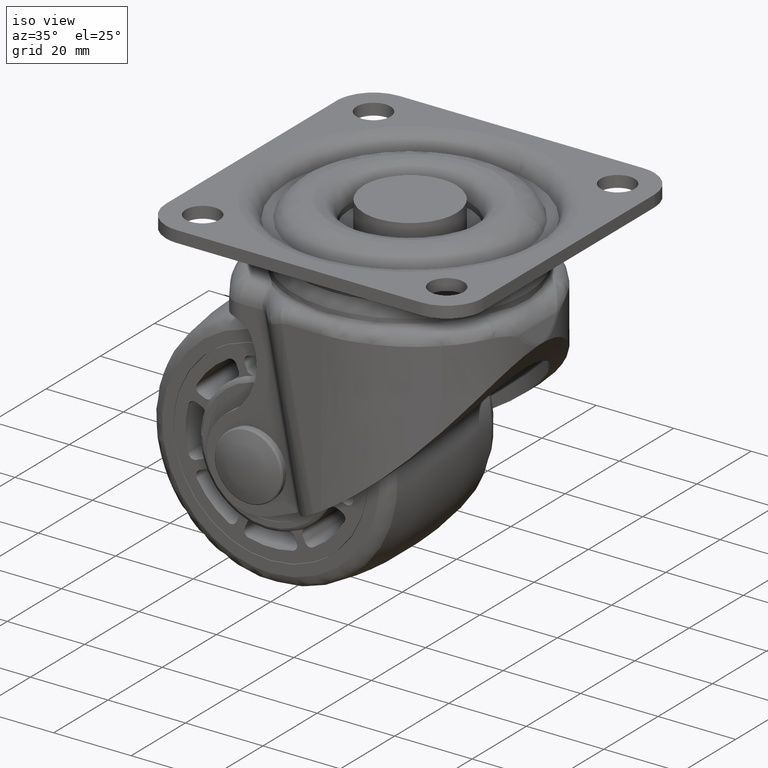
[diagram: clean part render]
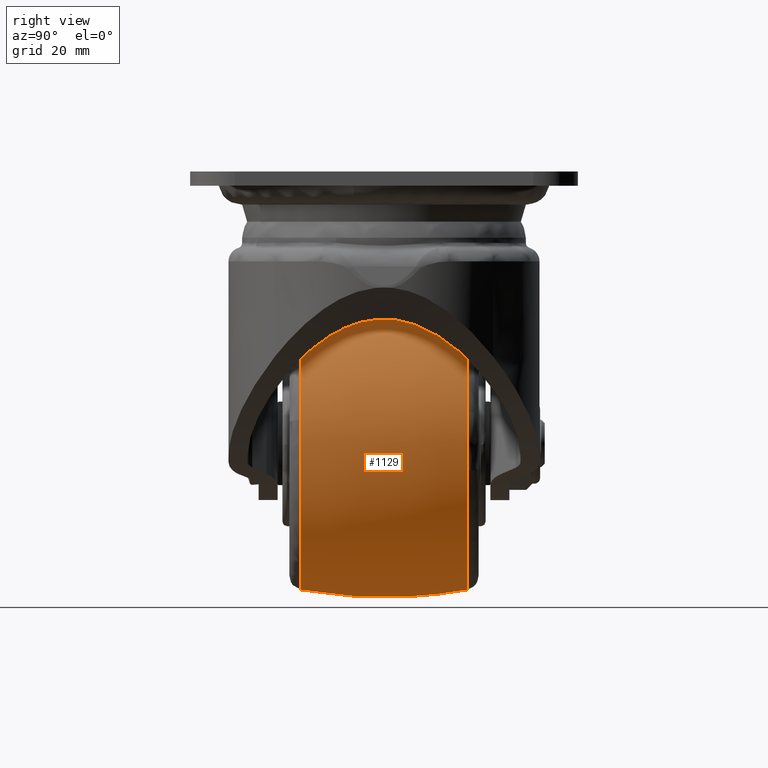
[diagram: tour spotlight — one face highlighted and labeled with its STEP entity id]
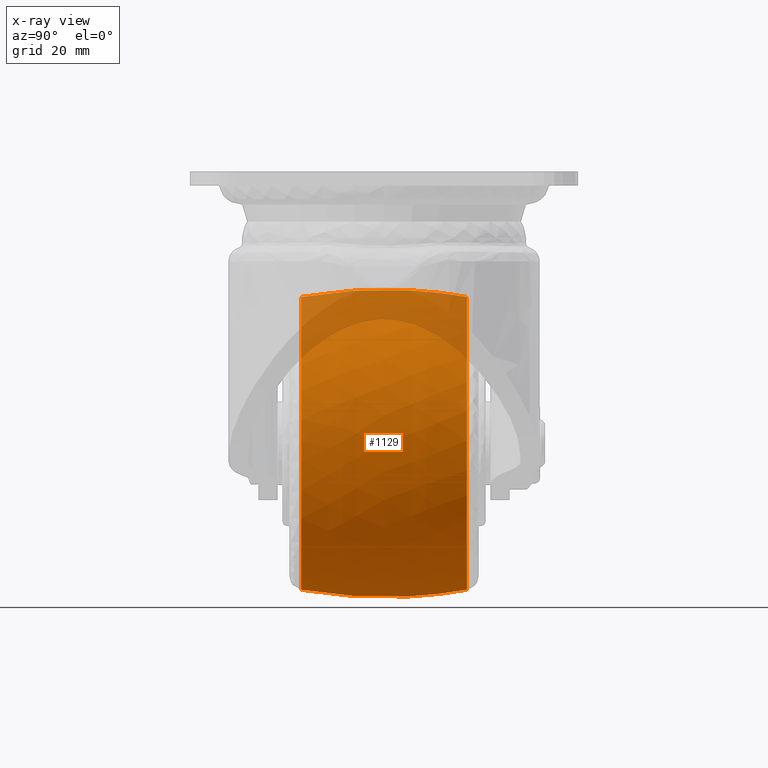
[diagram: x-ray of the same camera — body ghosted, this tour face saturated]
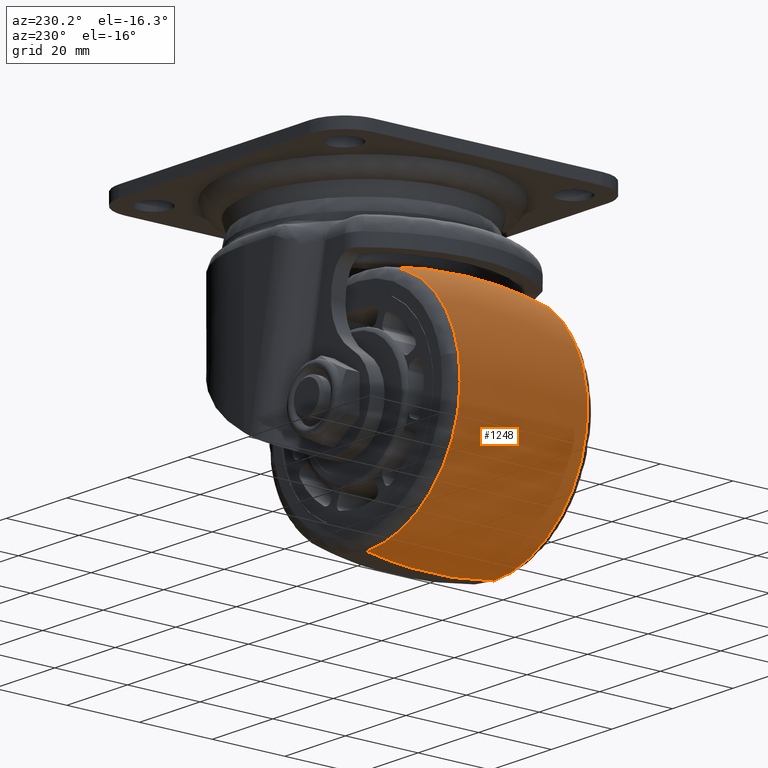
[diagram: tour spotlight — one face highlighted and labeled with its STEP entity id]
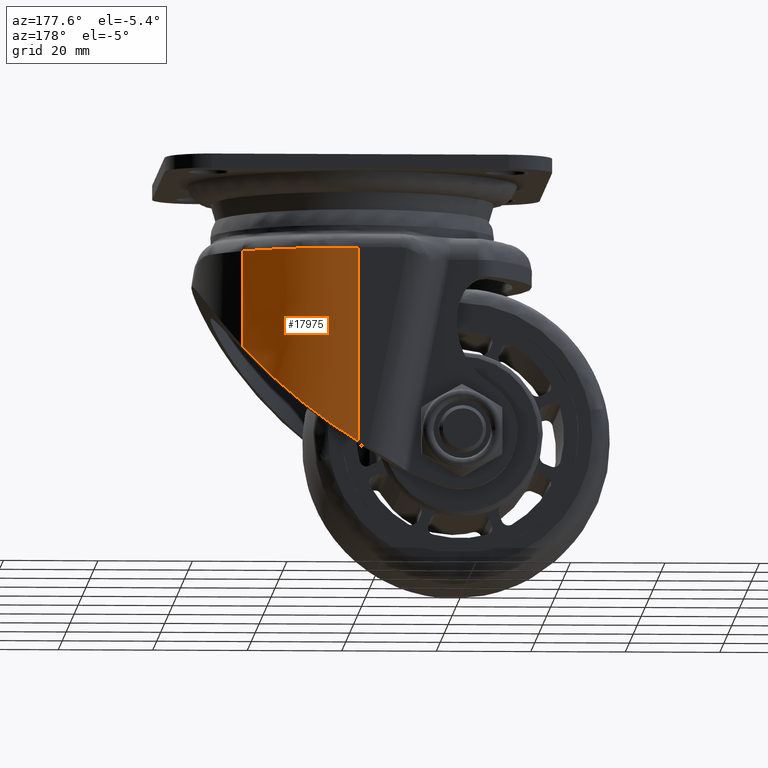
[diagram: tour spotlight — one face highlighted and labeled with its STEP entity id]
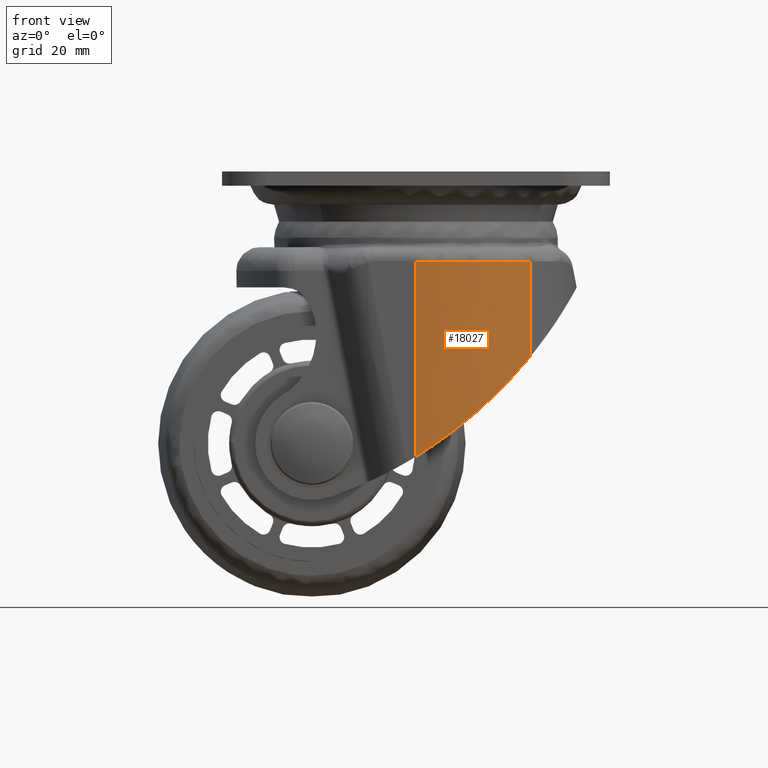
[diagram: tour spotlight — one face highlighted and labeled with its STEP entity id]
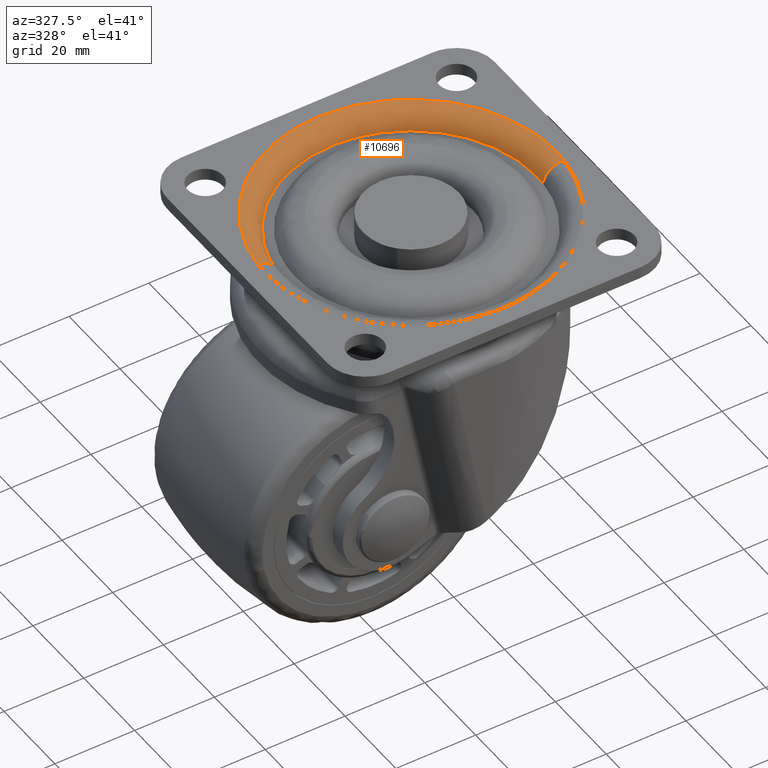
[diagram: tour spotlight — one face highlighted and labeled with its STEP entity id]
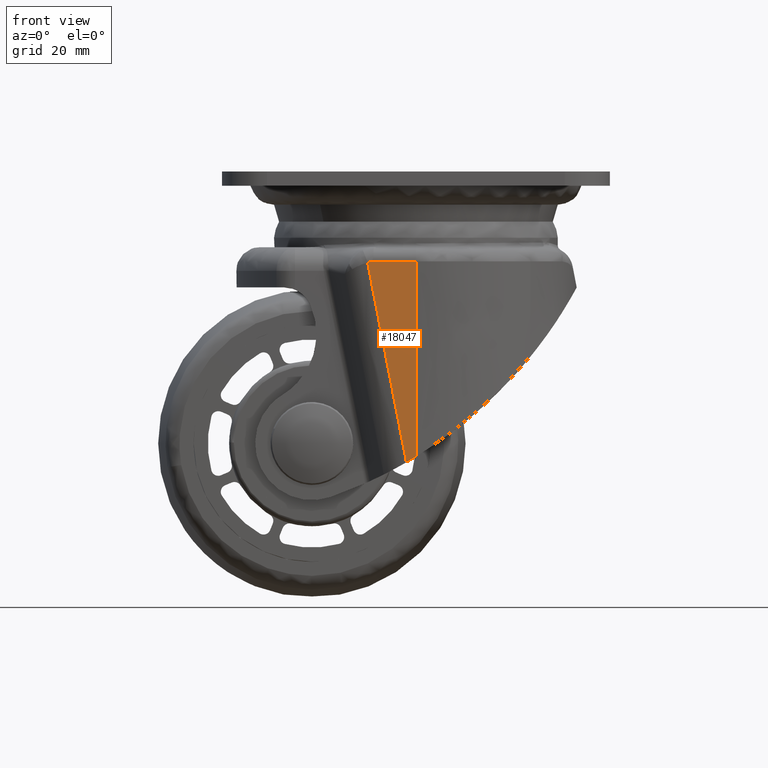
[diagram: tour spotlight — one face highlighted and labeled with its STEP entity id]
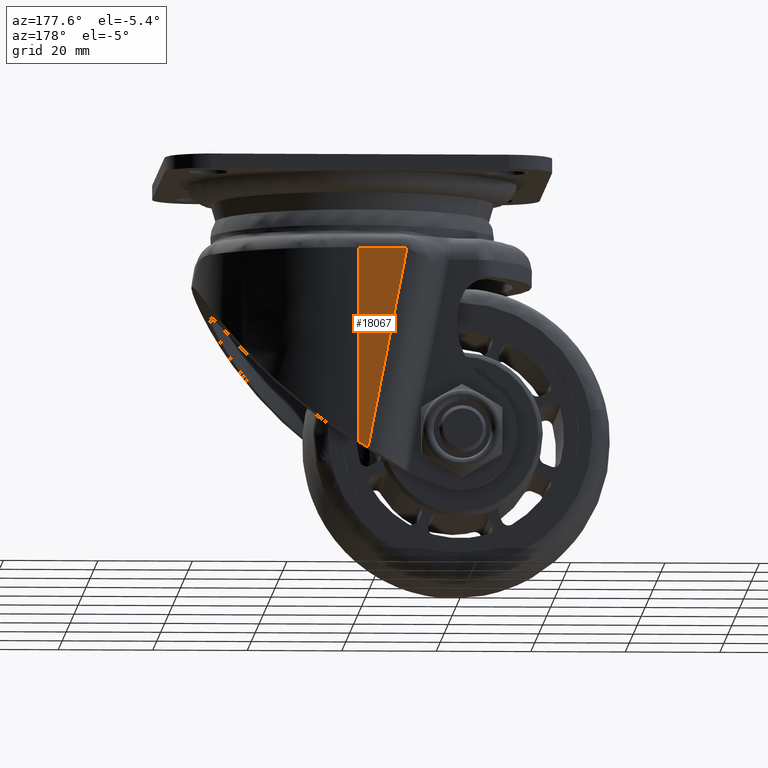
[diagram: tour spotlight — one face highlighted and labeled with its STEP entity id]
A machine part: a face-by-face anatomy tour. The part has 332 B-rep faces; the first image is the clean iso view, then the 7 largest visible faces are spotlighted one at a time (largest first), each with its STEP entity span.

Face 1 — right view, entity #1129. An x-ray twin of the same camera follows (body ghosted, this face saturated) — the face is partly hidden behind the body. In plain terms, the highlighted face is a freeform B-spline surface patch.
Definition (entity closure, byte-faithful):
#985=CARTESIAN_POINT('',(-0.856139173198748,-19.280469753875106,-30.623715207231665));
#986=CARTESIAN_POINT('',(-0.908593974985395,-9.731530490283955,-32.500000000000000));
#987=CARTESIAN_POINT('',(-0.908593974985395,0.0,-32.500000000000007));
#988=CARTESIAN_POINT('',(-0.908593974985395,9.731530490283953,-32.500000000000000));
#989=CARTESIAN_POINT('',(-0.856139173198748,19.280469753875099,-30.623715207231665));
#990=CARTESIAN_POINT('',(-0.430562556700532,-19.280469753875106,-30.623715207231669));
#991=CARTESIAN_POINT('',(-0.456942699410385,-9.731530490283957,-32.500000000000000));
#992=CARTESIAN_POINT('',(-0.456942699410385,0.0,-32.500000000000000));
#993=CARTESIAN_POINT('',(-0.456942699410385,9.731530490283955,-32.500000000000000));
#994=CARTESIAN_POINT('',(-0.430562556700532,19.280469753875096,-30.623715207231669));
#995=CARTESIAN_POINT('',(30.623715207231665,-19.280469753875089,-30.623715207231665));
#996=CARTESIAN_POINT('',(32.499999999999993,-9.731530490283953,-32.499999999999993));
#997=CARTESIAN_POINT('',(32.500000000000007,0.0,-32.500000000000007));
#998=CARTESIAN_POINT('',(32.499999999999993,9.731530490283952,-32.499999999999993));
#999=CARTESIAN_POINT('',(30.623715207231665,19.280469753875089,-30.623715207231665));
#1000=CARTESIAN_POINT('',(30.623715207231662,-19.280469753875103,0.0));
#1001=CARTESIAN_POINT('',(32.499999999999993,-9.731530490283957,0.0));
#1002=CARTESIAN_POINT('',(32.500000000000000,0.0,0.0));
#1003=CARTESIAN_POINT('',(32.499999999999993,9.731530490283955,0.0));
#1004=CARTESIAN_POINT('',(30.623715207231673,19.280469753875103,0.0));
#1005=CARTESIAN_POINT('',(30.623715207231665,-19.280469753875089,30.623715207231665));
#1006=CARTESIAN_POINT('',(32.499999999999993,-9.731530490283953,32.499999999999993));
#1007=CARTESIAN_POINT('',(32.500000000000007,0.0,32.500000000000007));
#1008=CARTESIAN_POINT('',(32.499999999999993,9.731530490283952,32.499999999999993));
#1009=CARTESIAN_POINT('',(30.623715207231665,19.280469753875089,30.623715207231665));
#1010=CARTESIAN_POINT('',(-0.430562556700530,-19.280469753875106,30.623715207231669));
#1011=CARTESIAN_POINT('',(-0.456942699410383,-9.731530490283957,32.500000000000000));
#1012=CARTESIAN_POINT('',(-0.456942699410383,0.0,32.500000000000000));
#1013=CARTESIAN_POINT('',(-0.456942699410383,9.731530490283955,32.500000000000000));
#1014=CARTESIAN_POINT('',(-0.430562556700530,19.280469753875096,30.623715207231669));
#1015=CARTESIAN_POINT('',(-0.856139173198744,-19.280469753875106,30.623715207231665));
#1016=CARTESIAN_POINT('',(-0.908593974985391,-9.731530490283957,32.500000000000000));
#1017=CARTESIAN_POINT('',(-0.908593974985391,0.0,32.500000000000007));
#1018=CARTESIAN_POINT('',(-0.908593974985391,9.731530490283955,32.500000000000000));
#1019=CARTESIAN_POINT('',(-0.856139173198744,19.280469753875099,30.623715207231665));
#1027=(BOUNDED_SURFACE()B_SPLINE_SURFACE(2,2,((#985,#990,#995,#1000,#1005,#1010,#1015),(#986,#991,#996,#1001,#1006,#1011,#1016),(#987,#992,#997,#1002,#1007,#1012,#1017),(#988,#993,#998,#1003,#1008,#1013,#1018),(#989,#994,#999,#1004,#1009,#1014,#1019)),.UNSPECIFIED.,.F.,.F.,.U.)B_SPLINE_SURFACE_WITH_KNOTS((3,2,3),(3,1,2,1,3),(0.0,19.675401992808450,39.350803985616913),(0.0,1.076955262170050,54.924718370672409,108.772481479174800,109.849436741344800),.UNSPECIFIED.)GEOMETRIC_REPRESENTATION_ITEM()RATIONAL_B_SPLINE_SURFACE(((0.980708699014471,0.975030366269227,0.685435396261778,0.969352033523983,0.685435396261778,0.975030366269227,0.980708699014471),(0.991408181386219,0.985667898317530,0.692913461814418,0.979927615248842,0.692913461814418,0.985667898317530,0.991408181386219),(1.011715728752538,1.005857864376269,0.707106781186548,1.0,0.707106781186548,1.005857864376269,1.011715728752538),(0.991408181386219,0.985667898317530,0.692913461814418,0.979927615248842,0.692913461814418,0.985667898317530,0.991408181386219),(0.980708699014471,0.975030366269227,0.685435396261778,0.969352033523983,0.685435396261778,0.975030366269227,0.980708699014471)))REPRESENTATION_ITEM('')SURFACE());
#1028=CARTESIAN_POINT('',(0.0,-17.525756904777200,-30.952261756215570));
#1029=VERTEX_POINT('',#1028);
#1030=CARTESIAN_POINT('',(0.0,17.525757398797310,-30.952261668273788));
#1031=VERTEX_POINT('',#1030);
#1032=CARTESIAN_POINT('',(0.0,-17.525756904777200,-30.952261756215570));
#1033=CARTESIAN_POINT('',(0.0,-13.099420813755319,-31.740369226638052));
#1034=CARTESIAN_POINT('',(0.0,-6.060103048391290,-32.508514881213983));
#1035=CARTESIAN_POINT('',(0.0,5.693089043190954,-32.540796742639323));
#1036=CARTESIAN_POINT('',(0.0,12.918758855439600,-31.772616394592308));
#1037=CARTESIAN_POINT('',(0.0,17.525757398797310,-30.952261668273788));
#1038=B_SPLINE_CURVE_WITH_KNOTS('',3,(#1032,#1033,#1034,#1035,#1036,#1037),.UNSPECIFIED.,.F.,.U.,(4,1,1,4),(2.070976E-009,13.487826392924870,21.195138228217921,35.233487682683837),.UNSPECIFIED.);
#1039=EDGE_CURVE('',#1029,#1031,#1038,.T.);
#1040=ORIENTED_EDGE('',*,*,#1039,.T.);
#1041=CARTESIAN_POINT('',(30.404010644361978,17.525757632879920,-5.799875218805520));
#1042=VERTEX_POINT('',#1041);
#1043=CARTESIAN_POINT('',(0.0,17.525757398797310,-30.952261668273788));
#1044=CARTESIAN_POINT('',(1.392744780876145,17.525757405164089,-30.952313668932899));
#1045=CARTESIAN_POINT('',(4.233942900691042,17.525757418879191,-30.760189326765271));
#1046=CARTESIAN_POINT('',(8.334647099602542,17.525757440851851,-29.906813562475332));
#1047=CARTESIAN_POINT('',(12.492297065781610,17.525757465421790,-28.435306040804271));
#1048=CARTESIAN_POINT('',(15.955996628873690,17.525757488128281,-26.617635967498920));
#1049=CARTESIAN_POINT('',(19.298811451386999,17.525757512194339,-24.293908268983010));
#1050=CARTESIAN_POINT('',(21.846369228510330,17.525757532395669,-22.031196262397451));
#1051=CARTESIAN_POINT('',(24.289247153388061,17.525757553971332,-19.277989321061881));
#1052=CARTESIAN_POINT('',(26.365933836888232,17.525757574451699,-16.372005630448388));
#1053=CARTESIAN_POINT('',(28.773406221570689,17.525757602373581,-11.897329280285049));
#1054=CARTESIAN_POINT('',(29.945294210810172,17.525757621679752,-8.207879989345688));
#1055=CARTESIAN_POINT('',(30.404010644361978,17.525757632879920,-5.799875218805520));
#1056=B_SPLINE_CURVE_WITH_KNOTS('',3,(#1043,#1044,#1045,#1046,#1047,#1048,#1049,#1050,#1051,#1052,#1053,#1054,#1055),.UNSPECIFIED.,.F.,.U.,(4,1,1,1,1,1,1,1,1,1,4),(0.000000057748984,4.178232520194484,8.523644050764382,12.534781966557819,17.381570702245309,20.222823348967889,24.735266116828850,27.576515839126021,31.253383511465081,35.431660655774053,42.785386132691741),.UNSPECIFIED.);
#1057=EDGE_CURVE('',#1031,#1042,#1056,.T.);
#1058=ORIENTED_EDGE('',*,*,#1057,.T.);
#1059=CARTESIAN_POINT('',(0.0,17.525757398711619,30.952261668289051));
#1060=VERTEX_POINT('',#1059);
#1061=CARTESIAN_POINT('',(30.404010644361978,17.525757632879920,-5.799875218805520));
#1062=CARTESIAN_POINT('',(30.696400846740829,17.525757627997791,-4.267644396484165));
#1063=CARTESIAN_POINT('',(30.992631618277422,17.525757619034390,-1.653446560374855));
#1064=CARTESIAN_POINT('',(30.938068054186100,17.525757604360329,2.180058399439919));
#1065=CARTESIAN_POINT('',(30.550937985211529,17.525757591417069,5.281083295994484));
#1066=CARTESIAN_POINT('',(29.747638997579870,17.525757575552859,8.809999627292893));
#1067=CARTESIAN_POINT('',(28.583494390335922,17.525757559486490,12.093973039709400));
#1068=CARTESIAN_POINT('',(26.822624025917669,17.525757540790881,15.579329735306301));
#1069=CARTESIAN_POINT('',(24.911532056554101,17.525757523805218,18.488704911665710));
#1070=CARTESIAN_POINT('',(22.583919997435220,17.525757506025801,21.263184653933560));
#1071=CARTESIAN_POINT('',(19.493375477061811,17.525757485256090,24.197283257120191));
#1072=CARTESIAN_POINT('',(16.162290123216138,17.525757466059979,26.516462546420531));
#1073=CARTESIAN_POINT('',(12.366906903052399,17.525757446878739,28.447796871922922));
#1074=CARTESIAN_POINT('',(8.771546132399450,17.525757430550740,29.790356072880918));
#1075=CARTESIAN_POINT('',(4.466907363125918,17.525757413501449,30.736976397666218));
#1076=CARTESIAN_POINT('',(1.488979619330137,17.525757403370140,30.952332422397230));
#1077=CARTESIAN_POINT('',(0.0,17.525757398711619,30.952261668289051));
#1078=B_SPLINE_CURVE_WITH_KNOTS('',3,(#1061,#1062,#1063,#1064,#1065,#1066,#1067,#1068,#1069,#1070,#1071,#1072,#1073,#1074,#1075,#1076,#1077),.UNSPECIFIED.,.F.,.U.,(4,1,1,1,1,1,1,1,1,1,1,1,1,1,4),(0.000000074717512,4.679626728320763,7.870319085933268,11.486423813431330,14.038968109286140,18.718644778883149,21.909306933395680,25.738155883983499,29.141451944415081,32.757549128355237,38.500788837303880,41.266051357841590,45.520304261609283,49.987231402810380,54.454168084198209),.UNSPECIFIED.);
#1079=EDGE_CURVE('',#1042,#1060,#1078,.T.);
#1080=ORIENTED_EDGE('',*,*,#1079,.T.);
#1081=CARTESIAN_POINT('',(0.0,-17.525756904688699,30.952261756231341));
#1082=VERTEX_POINT('',#1081);
#1083=CARTESIAN_POINT('',(0.0,-17.525756904688699,30.952261756231341));
#1084=CARTESIAN_POINT('',(0.0,-14.906081762155299,31.418615039114751));
#1085=CARTESIAN_POINT('',(0.0,-8.992653741130324,32.229347687437013));
#1086=CARTESIAN_POINT('',(0.0,2.753396155148824,32.779574046951680));
#1087=CARTESIAN_POINT('',(0.0,11.834784540828871,31.965904664092449));
#1088=CARTESIAN_POINT('',(0.0,17.525757398711619,30.952261668289051));
#1089=B_SPLINE_CURVE_WITH_KNOTS('',3,(#1083,#1084,#1085,#1086,#1087,#1088),.UNSPECIFIED.,.F.,.U.,(4,1,1,4),(2.073286E-009,7.982586066664741,17.891992888526850,35.233487682506919),.UNSPECIFIED.);
#1090=EDGE_CURVE('',#1082,#1060,#1089,.T.);
#1091=ORIENTED_EDGE('',*,*,#1090,.F.);
#1092=CARTESIAN_POINT('',(30.540160180618798,-17.525757148406520,5.033987871777081));
#1093=VERTEX_POINT('',#1092);
#1094=CARTESIAN_POINT('',(30.540160180618798,-17.525757148406520,5.033987871777081));
#1095=CARTESIAN_POINT('',(30.208293853836530,-17.525757138932981,7.048878292959214));
#1096=CARTESIAN_POINT('',(29.276644581107210,-17.525757120954779,10.516971708531059));
#1097=CARTESIAN_POINT('',(27.164983134872600,-17.525757093289730,15.055134793190220));
#1098=CARTESIAN_POINT('',(24.522799720021730,-17.525757065099061,19.101831603941150));
#1099=CARTESIAN_POINT('',(21.457565828198639,-17.525757037605828,22.473184137135011));
#1100=CARTESIAN_POINT('',(18.148037386268470,-17.525757011679872,25.158689093221319));
#1101=CARTESIAN_POINT('',(15.271578346408949,-17.525756991136969,26.987314851271879));
#1102=CARTESIAN_POINT('',(12.119301022902521,-17.525756970337650,28.556275301801719));
#1103=CARTESIAN_POINT('',(8.750649414600332,-17.525756949924780,29.772065390340199));
#1104=CARTESIAN_POINT('',(4.594516460581554,-17.525756926941590,30.713046974579608));
#1105=CARTESIAN_POINT('',(1.701696144195243,-17.525756912581269,30.952401973311741));
#1106=CARTESIAN_POINT('',(0.0,-17.525756904688699,30.952261756231341));
#1107=B_SPLINE_CURVE_WITH_KNOTS('',3,(#1094,#1095,#1096,#1097,#1098,#1099,#1100,#1101,#1102,#1103,#1104,#1105,#1106),.UNSPECIFIED.,.F.,.U.,(4,1,1,1,1,1,1,1,1,1,4),(0.000000060966599,6.126066618044035,10.720656648409040,14.974899046467501,20.590513647680361,24.334149332455620,27.737570133352790,30.800611744821762,34.884679294912821,38.458239310790319,43.563304237505569),.UNSPECIFIED.);
#1108=EDGE_CURVE('',#1093,#1082,#1107,.T.);
#1109=ORIENTED_EDGE('',*,*,#1108,.F.);
#1110=CARTESIAN_POINT('',(0.0,-17.525756904777200,-30.952261756215570));
#1111=CARTESIAN_POINT('',(2.236525427181137,-17.525756912247090,-30.952666477368229));
#1112=CARTESIAN_POINT('',(6.150248899797396,-17.525756926999978,-30.526130297755390));
#1113=CARTESIAN_POINT('',(10.909371995836461,-17.525756948652020,-29.064009680533459));
#1114=CARTESIAN_POINT('',(14.534898786766041,-17.525756967309601,-27.400494751679609));
#1115=CARTESIAN_POINT('',(17.834303998510300,-17.525756986147901,-25.414193116995630));
#1116=CARTESIAN_POINT('',(21.001640692099031,-17.525757006754379,-22.866366957165418));
#1117=CARTESIAN_POINT('',(24.322964023729810,-17.525757031657140,-19.357554378222890));
#1118=CARTESIAN_POINT('',(27.172702321279768,-17.525757057612928,-15.180670182281849));
#1119=CARTESIAN_POINT('',(29.269196362309760,-17.525757083300778,-10.432384448756460));
#1120=CARTESIAN_POINT('',(30.564213749086051,-17.525757106523638,-5.630248541546425));
#1121=CARTESIAN_POINT('',(31.114274554724190,-17.525757128398588,-0.538046083548999));
#1122=CARTESIAN_POINT('',(30.847247760770632,-17.525757142105910,3.172088629920324));
#1123=CARTESIAN_POINT('',(30.540160180618798,-17.525757148406520,5.033987871777081));
#1124=B_SPLINE_CURVE_WITH_KNOTS('',3,(#1110,#1111,#1112,#1113,#1114,#1115,#1116,#1117,#1118,#1119,#1120,#1121,#1122,#1123),.UNSPECIFIED.,.F.,.U.,(4,1,1,1,1,1,1,1,1,1,1,4),(0.000000079270578,6.709500423325864,11.741678026762861,14.886779755284710,18.660908244576330,23.273732686642610,27.047757864290869,33.128274664909043,38.370121992703318,42.563592697369693,48.015104545453923,53.676248560977342),.UNSPECIFIED.);
#1125=EDGE_CURVE('',#1029,#1093,#1124,.T.);
#1126=ORIENTED_EDGE('',*,*,#1125,.F.);
#1127=EDGE_LOOP('',(#1040,#1058,#1080,#1091,#1109,#1126));
#1128=FACE_OUTER_BOUND('',#1127,.T.);
#1129=ADVANCED_FACE('',(#1128),#1027,.T.);

Face 2 — auxiliary view, entity #1248. In plain terms, the highlighted face is a freeform B-spline surface patch.
Definition (entity closure, byte-faithful):
#1028=CARTESIAN_POINT('',(0.0,-17.525756904777200,-30.952261756215570));
#1029=VERTEX_POINT('',#1028);
#1030=CARTESIAN_POINT('',(0.0,17.525757398797310,-30.952261668273788));
#1031=VERTEX_POINT('',#1030);
#1032=CARTESIAN_POINT('',(0.0,-17.525756904777200,-30.952261756215570));
#1033=CARTESIAN_POINT('',(0.0,-13.099420813755319,-31.740369226638052));
#1034=CARTESIAN_POINT('',(0.0,-6.060103048391290,-32.508514881213983));
#1035=CARTESIAN_POINT('',(0.0,5.693089043190954,-32.540796742639323));
#1036=CARTESIAN_POINT('',(0.0,12.918758855439600,-31.772616394592308));
#1037=CARTESIAN_POINT('',(0.0,17.525757398797310,-30.952261668273788));
#1038=B_SPLINE_CURVE_WITH_KNOTS('',3,(#1032,#1033,#1034,#1035,#1036,#1037),.UNSPECIFIED.,.F.,.U.,(4,1,1,4),(2.070976E-009,13.487826392924870,21.195138228217921,35.233487682683837),.UNSPECIFIED.);
#1039=EDGE_CURVE('',#1029,#1031,#1038,.T.);
#1059=CARTESIAN_POINT('',(0.0,17.525757398711619,30.952261668289051));
#1060=VERTEX_POINT('',#1059);
#1081=CARTESIAN_POINT('',(0.0,-17.525756904688699,30.952261756231341));
#1082=VERTEX_POINT('',#1081);
#1083=CARTESIAN_POINT('',(0.0,-17.525756904688699,30.952261756231341));
#1084=CARTESIAN_POINT('',(0.0,-14.906081762155299,31.418615039114751));
#1085=CARTESIAN_POINT('',(0.0,-8.992653741130324,32.229347687437013));
#1086=CARTESIAN_POINT('',(0.0,2.753396155148824,32.779574046951680));
#1087=CARTESIAN_POINT('',(0.0,11.834784540828871,31.965904664092449));
#1088=CARTESIAN_POINT('',(0.0,17.525757398711619,30.952261668289051));
#1089=B_SPLINE_CURVE_WITH_KNOTS('',3,(#1083,#1084,#1085,#1086,#1087,#1088),.UNSPECIFIED.,.F.,.U.,(4,1,1,4),(2.073286E-009,7.982586066664741,17.891992888526850,35.233487682506919),.UNSPECIFIED.);
#1090=EDGE_CURVE('',#1082,#1060,#1089,.T.);
#1130=CARTESIAN_POINT('',(0.856139173198747,-19.280469753875106,30.623715207231665));
#1131=CARTESIAN_POINT('',(0.908593974985393,-9.731530490283957,32.500000000000007));
#1132=CARTESIAN_POINT('',(0.908593974985393,0.0,32.500000000000007));
#1133=CARTESIAN_POINT('',(0.908593974985393,9.731530490283955,32.500000000000007));
#1134=CARTESIAN_POINT('',(0.856139173198747,19.280469753875099,30.623715207231665));
#1135=CARTESIAN_POINT('',(0.430562556700531,-19.280469753875106,30.623715207231669));
#1136=CARTESIAN_POINT('',(0.456942699410384,-9.731530490283957,32.500000000000000));
#1137=CARTESIAN_POINT('',(0.456942699410384,0.0,32.500000000000000));
#1138=CARTESIAN_POINT('',(0.456942699410384,9.731530490283955,32.500000000000000));
#1139=CARTESIAN_POINT('',(0.430562556700531,19.280469753875096,30.623715207231669));
#1140=CARTESIAN_POINT('',(-30.623715207231665,-19.280469753875089,30.623715207231665));
#1141=CARTESIAN_POINT('',(-32.499999999999993,-9.731530490283953,32.499999999999993));
#1142=CARTESIAN_POINT('',(-32.500000000000007,0.0,32.500000000000007));
#1143=CARTESIAN_POINT('',(-32.499999999999993,9.731530490283952,32.499999999999993));
#1144=CARTESIAN_POINT('',(-30.623715207231665,19.280469753875089,30.623715207231665));
#1145=CARTESIAN_POINT('',(-30.623715207231662,-19.280469753875103,0.0));
#1146=CARTESIAN_POINT('',(-32.499999999999993,-9.731530490283957,0.0));
#1147=CARTESIAN_POINT('',(-32.500000000000000,0.0,0.0));
#1148=CARTESIAN_POINT('',(-32.499999999999993,9.731530490283955,0.0));
#1149=CARTESIAN_POINT('',(-30.623715207231673,19.280469753875103,0.0));
#1150=CARTESIAN_POINT('',(-30.623715207231665,-19.280469753875089,-30.623715207231665));
#1151=CARTESIAN_POINT('',(-32.499999999999993,-9.731530490283953,-32.499999999999993));
#1152=CARTESIAN_POINT('',(-32.500000000000007,0.0,-32.500000000000007));
#1153=CARTESIAN_POINT('',(-32.499999999999993,9.731530490283952,-32.499999999999993));
#1154=CARTESIAN_POINT('',(-30.623715207231665,19.280469753875089,-30.623715207231665));
#1155=CARTESIAN_POINT('',(0.430562556700530,-19.280469753875106,-30.623715207231669));
#1156=CARTESIAN_POINT('',(0.456942699410383,-9.731530490283957,-32.500000000000000));
#1157=CARTESIAN_POINT('',(0.456942699410383,0.0,-32.500000000000000));
#1158=CARTESIAN_POINT('',(0.456942699410383,9.731530490283955,-32.500000000000000));
#1159=CARTESIAN_POINT('',(0.430562556700530,19.280469753875096,-30.623715207231669));
#1160=CARTESIAN_POINT('',(0.856139173198744,-19.280469753875106,-30.623715207231665));
#1161=CARTESIAN_POINT('',(0.908593974985391,-9.731530490283957,-32.500000000000000));
#1162=CARTESIAN_POINT('',(0.908593974985391,0.0,-32.500000000000007));
#1163=CARTESIAN_POINT('',(0.908593974985391,9.731530490283955,-32.500000000000000));
#1164=CARTESIAN_POINT('',(0.856139173198744,19.280469753875099,-30.623715207231665));
#1172=(BOUNDED_SURFACE()B_SPLINE_SURFACE(2,2,((#1130,#1135,#1140,#1145,#1150,#1155,#1160),(#1131,#1136,#1141,#1146,#1151,#1156,#1161),(#1132,#1137,#1142,#1147,#1152,#1157,#1162),(#1133,#1138,#1143,#1148,#1153,#1158,#1163),(#1134,#1139,#1144,#1149,#1154,#1159,#1164)),.UNSPECIFIED.,.F.,.F.,.U.)B_SPLINE_SURFACE_WITH_KNOTS((3,2,3),(3,1,2,1,3),(0.0,19.675401992808450,39.350803985616913),(0.0,1.076955262170048,54.924718370672402,108.772481479174800,109.849436741344800),.UNSPECIFIED.)GEOMETRIC_REPRESENTATION_ITEM()RATIONAL_B_SPLINE_SURFACE(((0.980708699014471,0.975030366269227,0.685435396261778,0.969352033523983,0.685435396261778,0.975030366269227,0.980708699014471),(0.991408181386219,0.985667898317530,0.692913461814418,0.979927615248842,0.692913461814418,0.985667898317530,0.991408181386219),(1.011715728752538,1.005857864376269,0.707106781186548,1.0,0.707106781186548,1.005857864376269,1.011715728752538),(0.991408181386219,0.985667898317530,0.692913461814418,0.979927615248842,0.692913461814418,0.985667898317530,0.991408181386219),(0.980708699014471,0.975030366269227,0.685435396261778,0.969352033523983,0.685435396261778,0.975030366269227,0.980708699014471)))REPRESENTATION_ITEM('')SURFACE());
#1173=ORIENTED_EDGE('',*,*,#1039,.F.);
#1174=CARTESIAN_POINT('',(-30.540160180616262,-17.525757148420912,-5.033987871776663));
#1175=VERTEX_POINT('',#1174);
#1176=CARTESIAN_POINT('',(-30.540160180616262,-17.525757148420912,-5.033987871776663));
#1177=CARTESIAN_POINT('',(-30.281937372229081,-17.525757141056619,-6.601091688987897));
#1178=CARTESIAN_POINT('',(-29.455833204310160,-17.525757123961760,-9.971701245086875));
#1179=CARTESIAN_POINT('',(-27.422025125952938,-17.525757096012558,-14.677080432784271));
#1180=CARTESIAN_POINT('',(-24.870749725929201,-17.525757068805628,-18.583950198683141));
#1181=CARTESIAN_POINT('',(-22.009056361819990,-17.525757042513771,-21.892272939916861));
#1182=CARTESIAN_POINT('',(-19.115262371634380,-17.525757018988479,-24.459741898061338));
#1183=CARTESIAN_POINT('',(-16.054650881338169,-17.525756996663588,-26.525577540544081));
#1184=CARTESIAN_POINT('',(-12.951666503876840,-17.525756975725209,-28.188916426135169));
#1185=CARTESIAN_POINT('',(-9.620699930465765,-17.525756955091570,-29.506231471122138));
#1186=CARTESIAN_POINT('',(-5.161703553424263,-17.525756929926072,-30.645540027856811));
#1187=CARTESIAN_POINT('',(-1.985325262198819,-17.525756913984861,-30.952500786878879));
#1188=CARTESIAN_POINT('',(0.0,-17.525756904777200,-30.952261756215570));
#1189=B_SPLINE_CURVE_WITH_KNOTS('',3,(#1176,#1177,#1178,#1179,#1180,#1181,#1182,#1183,#1184,#1185,#1186,#1187,#1188),.UNSPECIFIED.,.F.,.U.,(4,1,1,1,1,1,1,1,1,1,4),(0.000000060975161,4.764706953490865,10.380318604622980,15.315228011520141,18.718644189480489,23.483303786909900,26.886717073198600,29.779588162149810,34.033832756517732,37.607386250633262,43.563304237490023),.UNSPECIFIED.);
#1190=EDGE_CURVE('',#1175,#1029,#1189,.T.);
#1191=ORIENTED_EDGE('',*,*,#1190,.F.);
#1192=CARTESIAN_POINT('',(0.0,-17.525756904688699,30.952261756231341));
#1193=CARTESIAN_POINT('',(-2.236520790579224,-17.525756912158769,30.952629341037170));
#1194=CARTESIAN_POINT('',(-6.150245403097665,-17.525756926912582,30.526145947860812));
#1195=CARTESIAN_POINT('',(-11.780829303334309,-17.525756952533872,28.796420963158340));
#1196=CARTESIAN_POINT('',(-16.465333117161340,-17.525756977650879,26.392180308061640));
#1197=CARTESIAN_POINT('',(-20.101204265597850,-17.525757000612732,23.645505552033320));
#1198=CARTESIAN_POINT('',(-23.208840329131661,-17.525757022914249,20.618656688034150));
#1199=CARTESIAN_POINT('',(-25.637089991226620,-17.525757043182590,17.531289968601030));
#1200=CARTESIAN_POINT('',(-27.879594767540201,-17.525757065949719,13.652433187307871));
#1201=CARTESIAN_POINT('',(-29.513396836764532,-17.525757086963299,9.701739350800709));
#1202=CARTESIAN_POINT('',(-30.508582604308501,-17.525757106093511,5.688243652056241));
#1203=CARTESIAN_POINT('',(-31.092424669073800,-17.525757127473600,0.753983449395933));
#1204=CARTESIAN_POINT('',(-30.927191140177289,-17.525757140481289,-2.689377061155089));
#1205=CARTESIAN_POINT('',(-30.540160180616262,-17.525757148420912,-5.033987871776663));
#1206=B_SPLINE_CURVE_WITH_KNOTS('',3,(#1192,#1193,#1194,#1195,#1196,#1197,#1198,#1199,#1200,#1201,#1202,#1203,#1204,#1205),.UNSPECIFIED.,.F.,.U.,(4,1,1,1,1,1,1,1,1,1,1,4),(0.000000079263408,6.709500423321344,11.741678026760210,17.612540045558831,22.435034789643250,25.370467699064289,30.612206484087690,34.176646550526222,38.789472444376692,43.402283402847040,46.547402133294973,53.676248560992882),.UNSPECIFIED.);
#1207=EDGE_CURVE('',#1082,#1175,#1206,.T.);
#1208=ORIENTED_EDGE('',*,*,#1207,.F.);
#1209=ORIENTED_EDGE('',*,*,#1090,.T.);
#1210=CARTESIAN_POINT('',(-30.404010644364789,17.525757632863868,5.799875218806045));
#1211=VERTEX_POINT('',#1210);
#1212=CARTESIAN_POINT('',(0.0,17.525757398711619,30.952261668289051));
#1213=CARTESIAN_POINT('',(-2.005575378905270,17.525757407879411,30.952461831091320));
#1214=CARTESIAN_POINT('',(-5.960902562085891,17.525757427421581,30.566519614485220));
#1215=CARTESIAN_POINT('',(-11.539582374895890,17.525757459196662,28.908733546819761));
#1216=CARTESIAN_POINT('',(-16.320690024141051,17.525757490298759,26.465026821528980));
#1217=CARTESIAN_POINT('',(-20.542022571703409,17.525757521417351,23.340726596729741));
#1218=CARTESIAN_POINT('',(-23.886873693935922,17.525757549785720,19.884012505201561));
#1219=CARTESIAN_POINT('',(-26.518601887525019,17.525757575992841,16.137245462417869));
#1220=CARTESIAN_POINT('',(-28.865057610855111,17.525757603765150,11.631300169198020));
#1221=CARTESIAN_POINT('',(-29.966012487041770,17.525757622166680,8.098384004930843));
#1222=CARTESIAN_POINT('',(-30.404010644364789,17.525757632863868,5.799875218806045));
#1223=B_SPLINE_CURVE_WITH_KNOTS('',3,(#1212,#1213,#1214,#1215,#1216,#1217,#1218,#1219,#1220,#1221,#1222),.UNSPECIFIED.,.F.,.U.,(4,1,1,1,1,1,1,1,4),(0.000000057635489,6.016693039907651,11.866265483801440,17.381570702187851,22.061167863752910,27.576515839098729,31.754777613930312,35.765911707336883,42.785386132707160),.UNSPECIFIED.);
#1224=EDGE_CURVE('',#1060,#1211,#1223,.T.);
#1225=ORIENTED_EDGE('',*,*,#1224,.T.);
#1226=CARTESIAN_POINT('',(-30.404010644364789,17.525757632863868,5.799875218806045));
#1227=CARTESIAN_POINT('',(-30.816260495030530,17.525757625991378,3.640837810107244));
#1228=CARTESIAN_POINT('',(-31.107544877198979,17.525757613469018,0.087470284837409));
#1229=CARTESIAN_POINT('',(-30.623132120040800,17.525757591620209,-5.290977952543077));
#1230=CARTESIAN_POINT('',(-29.572191813518589,17.525757572403450,-9.504282127811939));
#1231=CARTESIAN_POINT('',(-28.118488662838899,17.525757554440911,-13.052674831652199));
#1232=CARTESIAN_POINT('',(-26.629772840095072,17.525757539101960,-15.877827354614251));
#1233=CARTESIAN_POINT('',(-24.826680205784651,17.525757523161570,-18.602342623374749));
#1234=CARTESIAN_POINT('',(-22.305816077473651,17.525757503992370,-21.586436989410931));
#1235=CARTESIAN_POINT('',(-19.362714819225062,17.525757484649979,-24.267103612982620));
#1236=CARTESIAN_POINT('',(-16.265367024725620,17.525757466867841,-26.407752584770691));
#1237=CARTESIAN_POINT('',(-13.141745058502289,17.525757450721802,-28.093162861672880));
#1238=CARTESIAN_POINT('',(-10.244639195634720,17.525757437222229,-29.266619825483740));
#1239=CARTESIAN_POINT('',(-6.904507589660208,17.525757423116641,-30.233464979154430));
#1240=CARTESIAN_POINT('',(-3.616087779026224,17.525757410627019,-30.815708795493212));
#1241=CARTESIAN_POINT('',(-1.134456765486197,17.525757402346681,-30.952277776591210));
#1242=CARTESIAN_POINT('',(0.0,17.525757398797310,-30.952261668273788));
#1243=B_SPLINE_CURVE_WITH_KNOTS('',3,(#1226,#1227,#1228,#1229,#1230,#1231,#1232,#1233,#1234,#1235,#1236,#1237,#1238,#1239,#1240,#1241,#1242),.UNSPECIFIED.,.F.,.U.,(4,1,1,1,1,1,1,1,1,1,1,1,1,1,4),(0.000000074664896,6.594036469592830,10.635579296179561,16.166085325685120,19.569497013794500,22.122026443505192,25.738155883945321,29.354198093999020,33.821109766033388,37.649937563563263,40.627914385111019,44.456741565650368,47.009269956796167,51.050789746367563,54.454168084183443),.UNSPECIFIED.);
#1244=EDGE_CURVE('',#1211,#1031,#1243,.T.);
#1245=ORIENTED_EDGE('',*,*,#1244,.T.);
#1246=EDGE_LOOP('',(#1173,#1191,#1208,#1209,#1225,#1245));
#1247=FACE_OUTER_BOUND('',#1246,.T.);
#1248=ADVANCED_FACE('',(#1247),#1172,.T.);

Face 3 — auxiliary view, entity #17975. In plain terms, the highlighted face is a freeform B-spline surface patch.
Definition (entity closure, byte-faithful):
#13921=CARTESIAN_POINT('',(46.209957978204997,23.083460919150401,18.377184052013600));
#13922=VERTEX_POINT('',#13921);
#13961=CARTESIAN_POINT('',(46.209957978204997,23.083460919150401,38.499999999999098));
#13962=VERTEX_POINT('',#13961);
#13963=CARTESIAN_POINT('',(46.209957978204997,23.083460919150401,18.377184052013600));
#13964=CARTESIAN_POINT('',(46.209957978204997,23.083460919150401,38.499999999999098));
#13965=QUASI_UNIFORM_CURVE('',1,(#13963,#13964),.UNSPECIFIED.,.F.,.U.);
#13966=EDGE_CURVE('',#13922,#13962,#13965,.T.);
#15672=CARTESIAN_POINT('',(22.0,32.873504999999987,38.502668017230249));
#15673=VERTEX_POINT('',#15672);
#15752=CARTESIAN_POINT('',(33.961449775524848,30.755139152304601,38.499999999999098));
#15753=VERTEX_POINT('',#15752);
#15765=CARTESIAN_POINT('',(22.0,32.873504999999987,38.502668017230249));
#15766=CARTESIAN_POINT('',(24.352996024033281,32.873820233718682,38.502280100786201));
#15767=CARTESIAN_POINT('',(28.422841653344818,32.459412880512652,38.501472902865203));
#15768=CARTESIAN_POINT('',(32.348871568284309,31.344879621324338,38.500459549905258));
#15769=CARTESIAN_POINT('',(33.961449775524848,30.755139152304601,38.499999999999098));
#15770=B_SPLINE_CURVE_WITH_KNOTS('',3,(#15765,#15766,#15767,#15768,#15769),.UNSPECIFIED.,.F.,.U.,(4,1,4),(3.851257E-009,7.058913303273019,12.210024792715330),.UNSPECIFIED.);
#15771=EDGE_CURVE('',#15673,#15753,#15770,.T.);
#15816=CARTESIAN_POINT('',(33.961449775524848,30.755139152304601,38.499999999999098));
#15817=CARTESIAN_POINT('',(36.169207237964187,29.948174080881181,38.499999999999140));
#15818=CARTESIAN_POINT('',(40.557221377676719,27.818110830680570,38.499999999999119));
#15819=CARTESIAN_POINT('',(44.411345959803882,24.823087896890200,38.499999999999069));
#15820=CARTESIAN_POINT('',(46.209957978204997,23.083460919150401,38.499999999999098));
#15821=B_SPLINE_CURVE_WITH_KNOTS('',3,(#15816,#15817,#15818,#15819,#15820),.UNSPECIFIED.,.F.,.U.,(4,1,4),(5.211804E-009,7.051774058212798,14.558480038090210),.UNSPECIFIED.);
#15822=EDGE_CURVE('',#15753,#13962,#15821,.T.);
#17922=CARTESIAN_POINT('',(20.705451148641025,32.849438761021446,-3.805665920149413));
#17923=CARTESIAN_POINT('',(20.705451148641025,32.849438761021446,39.560376365664730));
#17924=CARTESIAN_POINT('',(36.315026177898289,33.430017297919541,-3.805665920149414));
#17925=CARTESIAN_POINT('',(36.315026177898289,33.430017297919541,39.560376365664737));
#17926=CARTESIAN_POINT('',(47.130404838815721,22.159547544954915,-3.805665920149414));
#17927=CARTESIAN_POINT('',(47.130404838815721,22.159547544954915,39.560376365664744));
#17935=(BOUNDED_SURFACE()B_SPLINE_SURFACE(1,2,((#17922,#17924,#17926),(#17923,#17925,#17927)),.UNSPECIFIED.,.F.,.F.,.U.)B_SPLINE_SURFACE_WITH_KNOTS((2,2),(3,3),(0.0,43.366042285814160),(0.0,29.810285558450680),.UNSPECIFIED.)GEOMETRIC_REPRESENTATION_ITEM()RATIONAL_B_SPLINE_SURFACE(((0.998686818005387,0.907811939732172,0.991183017981419),(0.998686818005387,0.907811939732172,0.991183017981419)))REPRESENTATION_ITEM('')SURFACE());
#17936=CARTESIAN_POINT('',(22.0,32.873504999999987,-2.773755336310885));
#17937=VERTEX_POINT('',#17936);
#17938=CARTESIAN_POINT('',(22.0,32.873504999999987,-2.773755336310885));
#17939=CARTESIAN_POINT('',(22.0,32.873504999999987,38.502668017230249));
#17940=QUASI_UNIFORM_CURVE('',1,(#17938,#17939),.UNSPECIFIED.,.F.,.U.);
#17941=EDGE_CURVE('',#17937,#15673,#17940,.T.);
#17942=ORIENTED_EDGE('',*,*,#17941,.T.);
#17943=ORIENTED_EDGE('',*,*,#15771,.T.);
#17944=ORIENTED_EDGE('',*,*,#15822,.T.);
#17945=ORIENTED_EDGE('',*,*,#13966,.F.);
#17946=CARTESIAN_POINT('',(22.0,32.873504999999987,-2.773755336310885));
#17947=CARTESIAN_POINT('',(23.228798558183570,32.873505000000002,-2.023672794887022));
#17948=CARTESIAN_POINT('',(24.428628012184632,32.808736384658793,-1.252980815540364));
#17949=CARTESIAN_POINT('',(26.774540293779509,32.564848062413837,0.328281198679590));
#17950=CARTESIAN_POINT('',(27.920609561031078,32.385670685891952,1.138853160772639));
#17951=CARTESIAN_POINT('',(30.161962442013198,31.922997011366611,2.798731678733325));
#17952=CARTESIAN_POINT('',(31.257238209601990,31.639471321933250,3.648040472145814));
#17953=CARTESIAN_POINT('',(33.399087775524897,30.974428228825559,5.384381206431286));
#17954=CARTESIAN_POINT('',(34.445657138226252,30.592899874628049,6.271416011258047));
#17955=CARTESIAN_POINT('',(35.596430823361082,30.110358480496991,7.290012558696668));
#17956=CARTESIAN_POINT('',(35.723924478471673,30.056000242807642,7.403477209013885));
#17957=CARTESIAN_POINT('',(35.978173643222632,29.945801666384519,7.630979130477650));
#17958=CARTESIAN_POINT('',(36.104967308514489,29.889943446266638,7.745051462116537));
#17959=CARTESIAN_POINT('',(36.483511426163588,29.720481656253192,8.087458685973699));
#17960=CARTESIAN_POINT('',(36.733647327600913,29.604897434594349,8.316181008274581));
#17961=CARTESIAN_POINT('',(37.477518336114620,29.250464719169059,9.003658891316146));
#17962=CARTESIAN_POINT('',(37.964720206544278,29.003942751229840,9.463726280098529));
#17963=CARTESIAN_POINT('',(39.401206518291971,28.234621901049010,10.848811407171519));
#17964=CARTESIAN_POINT('',(40.325416810867729,27.682165998140771,11.778731735343429));
#17965=CARTESIAN_POINT('',(42.111147294659943,26.500700635077418,13.649292339225230));
#17966=CARTESIAN_POINT('',(42.972660234601229,25.871697545378002,14.589943586354019));
#17967=CARTESIAN_POINT('',(44.635816485918191,24.536514921232410,16.478884195376519));
#17968=CARTESIAN_POINT('',(45.437459304120082,23.830364962888961,17.427192930501779));
#17969=CARTESIAN_POINT('',(46.209957978205701,23.083460919149751,18.377184052012499));
#17970=B_SPLINE_CURVE_WITH_KNOTS('',3,(#17946,#17947,#17948,#17949,#17950,#17951,#17952,#17953,#17954,#17955,#17956,#17957,#17958,#17959,#17960,#17961,#17962,#17963,#17964,#17965,#17966,#17967,#17968,#17969),.UNSPECIFIED.,.F.,.U.,(4,2,2,2,2,2,2,2,2,2,2,4),(0.0,0.124999999999999,0.249999999999999,0.374999999999998,0.499999999999997,0.515624999999997,0.531249999999997,0.562499999999997,0.624999999999997,0.749999999999998,0.874999999999999,1.0),.UNSPECIFIED.);
#17971=EDGE_CURVE('',#17937,#13922,#17970,.T.);
#17972=ORIENTED_EDGE('',*,*,#17971,.F.);
#17973=EDGE_LOOP('',(#17942,#17943,#17944,#17945,#17972));
#17974=FACE_OUTER_BOUND('',#17973,.T.);
#17975=ADVANCED_FACE('',(#17974),#17935,.T.);

Face 4 — front view, entity #18027. In plain terms, the highlighted face is a freeform B-spline surface patch.
Definition (entity closure, byte-faithful):
#14173=CARTESIAN_POINT('',(46.209957978204912,-23.083460919150198,18.377184052013352));
#14174=VERTEX_POINT('',#14173);
#14262=CARTESIAN_POINT('',(46.209957978204912,-23.083460919150198,38.499999999999098));
#14263=VERTEX_POINT('',#14262);
#14272=CARTESIAN_POINT('',(46.209957978204912,-23.083460919150198,18.377184052013352));
#14273=CARTESIAN_POINT('',(46.209957978204912,-23.083460919150198,38.499999999999098));
#14274=QUASI_UNIFORM_CURVE('',1,(#14272,#14273),.UNSPECIFIED.,.F.,.U.);
#14275=EDGE_CURVE('',#14174,#14263,#14274,.T.);
#16545=CARTESIAN_POINT('',(33.961449775524848,-30.755139152304601,38.500000000000000));
#16546=VERTEX_POINT('',#16545);
#16558=CARTESIAN_POINT('',(46.209957978204912,-23.083460919150198,38.499999999999098));
#16559=CARTESIAN_POINT('',(44.411372529513791,-24.823131215175611,38.499999999998920));
#16560=CARTESIAN_POINT('',(40.557182723749847,-27.818033710007661,38.499999999999083));
#16561=CARTESIAN_POINT('',(36.169225702917352,-29.948213500717760,38.499999999999481));
#16562=CARTESIAN_POINT('',(33.961449775524848,-30.755139152304601,38.500000000000000));
#16563=B_SPLINE_CURVE_WITH_KNOTS('',3,(#16558,#16559,#16560,#16561,#16562),.UNSPECIFIED.,.F.,.U.,(4,1,4),(5.212652E-009,7.506705985089989,14.558480038090231),.UNSPECIFIED.);
#16564=EDGE_CURVE('',#14263,#16546,#16563,.T.);
#16644=CARTESIAN_POINT('',(22.0,-32.873505000000037,38.502668017230249));
#16645=VERTEX_POINT('',#16644);
#16657=CARTESIAN_POINT('',(33.961449775524848,-30.755139152304601,38.500000000000000));
#16658=CARTESIAN_POINT('',(31.572545307977059,-31.629260067865111,38.500680909268880));
#16659=CARTESIAN_POINT('',(27.596260055355462,-32.605616454451813,38.501657163838964));
#16660=CARTESIAN_POINT('',(23.526251443586141,-32.873544697538108,38.502416326058018));
#16661=CARTESIAN_POINT('',(22.0,-32.873505000000037,38.502668017230249));
#16662=B_SPLINE_CURVE_WITH_KNOTS('',3,(#16657,#16658,#16659,#16660,#16661),.UNSPECIFIED.,.F.,.U.,(4,1,4),(3.850792E-009,7.631260609147265,12.210024758700181),.UNSPECIFIED.);
#16663=EDGE_CURVE('',#16546,#16645,#16662,.T.);
#17976=CARTESIAN_POINT('',(46.857121512307081,-22.441137663360799,-3.805665920149430));
#17977=CARTESIAN_POINT('',(46.857121512307081,-22.441137663360799,39.560376365664737));
#17978=CARTESIAN_POINT('',(36.076253458856307,-33.425216565005826,-3.805665920149430));
#17979=CARTESIAN_POINT('',(36.076253458856307,-33.425216565005826,39.560376365664737));
#17980=CARTESIAN_POINT('',(20.696227819903335,-32.849094487119160,-3.805665920149430));
#17981=CARTESIAN_POINT('',(20.696227819903335,-32.849094487119160,39.560376365664730));
#17989=(BOUNDED_SURFACE()B_SPLINE_SURFACE(1,2,((#17976,#17978,#17980),(#17977,#17979,#17981)),.UNSPECIFIED.,.F.,.F.,.U.)B_SPLINE_SURFACE_WITH_KNOTS((2,2),(3,3),(0.0,43.366042285814167),(0.0,29.409871317464749),.UNSPECIFIED.)GEOMETRIC_REPRESENTATION_ITEM()RATIONAL_B_SPLINE_SURFACE(((1.0,0.912455861800733,0.995149047199045),(1.0,0.912455861800733,0.995149047199045)))REPRESENTATION_ITEM('')SURFACE());
#17990=ORIENTED_EDGE('',*,*,#14275,.T.);
#17991=ORIENTED_EDGE('',*,*,#16564,.T.);
#17992=ORIENTED_EDGE('',*,*,#16663,.T.);
#17993=CARTESIAN_POINT('',(22.0,-32.873504999999987,-2.773755336310900));
#17994=VERTEX_POINT('',#17993);
#17995=CARTESIAN_POINT('',(22.0,-32.873504999999987,-2.773755336310900));
#17996=CARTESIAN_POINT('',(22.0,-32.873505000000037,38.502668017230249));
#17997=QUASI_UNIFORM_CURVE('',1,(#17995,#17996),.UNSPECIFIED.,.F.,.U.);
#17998=EDGE_CURVE('',#17994,#16645,#17997,.T.);
#17999=ORIENTED_EDGE('',*,*,#17998,.F.);
#18000=CARTESIAN_POINT('',(46.209957978204912,-23.083460919150198,18.377184052013352));
#18001=CARTESIAN_POINT('',(45.437677449365921,-23.830154045289031,17.427461197691361));
#18002=CARTESIAN_POINT('',(44.636575114246988,-24.535821003182150,16.479796952882150));
#18003=CARTESIAN_POINT('',(42.975273718183352,-25.869684158260739,14.592860830742509));
#18004=CARTESIAN_POINT('',(42.115074680104222,-26.497849458117471,13.653569550325781));
#18005=CARTESIAN_POINT('',(40.332912426001542,-27.677457936294459,11.786421211054099));
#18006=CARTESIAN_POINT('',(39.410955728006392,-28.228893572037219,10.858553135542961));
#18007=CARTESIAN_POINT('',(37.501310253911953,-29.252625802210790,9.016561429319799));
#18008=CARTESIAN_POINT('',(36.513635287815660,-29.724933589385600,8.102431502367027));
#18009=CARTESIAN_POINT('',(35.234479239236471,-30.262326759152970,6.969500913795022));
#18010=CARTESIAN_POINT('',(34.976184463966220,-30.367232953983031,6.743203656976510));
#18011=CARTESIAN_POINT('',(34.456985270639322,-30.570853875107510,6.293293150573184));
#18012=CARTESIAN_POINT('',(34.195919405734720,-30.669642832715120,6.069532516901672));
#18013=CARTESIAN_POINT('',(33.408296285665720,-30.956885263624521,5.401854952741338));
#18014=CARTESIAN_POINT('',(32.877314751976812,-31.136220309790790,4.961542257222791));
#18015=CARTESIAN_POINT('',(31.266414502977849,-31.637051048598650,3.655187199693090));
#18016=CARTESIAN_POINT('',(30.168563266115989,-31.921477400871840,2.803724251797305));
#18017=CARTESIAN_POINT('',(27.923141548786621,-32.385304408518159,1.140624496381161));
#18018=CARTESIAN_POINT('',(26.775578023655171,-32.564732544399916,0.328985509729436));
#18019=CARTESIAN_POINT('',(24.428035950161910,-32.808805568210602,-1.253384723287456));
#18020=CARTESIAN_POINT('',(23.228069426478118,-32.873504999999973,-2.024117871064512));
#18021=CARTESIAN_POINT('',(22.000000000001300,-32.873504999999987,-2.773755336312160));
#18022=B_SPLINE_CURVE_WITH_KNOTS('',3,(#18000,#18001,#18002,#18003,#18004,#18005,#18006,#18007,#18008,#18009,#18010,#18011,#18012,#18013,#18014,#18015,#18016,#18017,#18018,#18019,#18020,#18021),.UNSPECIFIED.,.F.,.U.,(4,2,2,2,2,2,2,2,2,2,4),(0.0,0.125000000000000,0.249999999999999,0.374999999999999,0.499999999999998,0.531249999999998,0.562499999999998,0.624999999999998,0.749999999999999,0.874999999999999,1.0),.UNSPECIFIED.);
#18023=EDGE_CURVE('',#14174,#17994,#18022,.T.);
#18024=ORIENTED_EDGE('',*,*,#18023,.F.);
#18025=EDGE_LOOP('',(#17990,#17991,#17992,#17999,#18024));
#18026=FACE_OUTER_BOUND('',#18025,.T.);
#18027=ADVANCED_FACE('',(#18026),#17989,.T.);

Face 5 — auxiliary view, entity #10696. In plain terms, the highlighted face is a freeform B-spline surface patch.
Definition (entity closure, byte-faithful):
#10423=CARTESIAN_POINT('',(53.378208688012002,-2.767312691366752,53.000000000034127));
#10424=VERTEX_POINT('',#10423);
#10442=CARTESIAN_POINT('',(53.500000000000249,2.842171E-014,53.0));
#10443=VERTEX_POINT('',#10442);
#10444=CARTESIAN_POINT('',(53.378208688012002,-2.767312691366752,53.000000000034127));
#10445=CARTESIAN_POINT('',(53.459356119180782,-1.847256255608594,53.000000000022723));
#10446=CARTESIAN_POINT('',(53.500007459640813,-0.923627927348705,53.000000000011383));
#10447=CARTESIAN_POINT('',(53.500000000000249,2.842171E-014,53.0));
#10448=B_SPLINE_CURVE_WITH_KNOTS('',3,(#10444,#10445,#10446,#10447),.UNSPECIFIED.,.F.,.U.,(4,4),(2.444054E-010,2.770888210099209),.UNSPECIFIED.);
#10449=EDGE_CURVE('',#10424,#10443,#10448,.T.);
#10451=CARTESIAN_POINT('',(23.384890689287150,31.469542064967090,53.000000000017067));
#10452=VERTEX_POINT('',#10451);
#10453=CARTESIAN_POINT('',(53.500000000000249,2.842171E-014,53.0));
#10454=CARTESIAN_POINT('',(53.500488302353673,2.379732878417225,52.999999999999943));
#10455=CARTESIAN_POINT('',(53.057833827970832,6.262152003234972,53.000000000000803));
#10456=CARTESIAN_POINT('',(51.526621974143062,11.243198694156280,53.000000000000959));
#10457=CARTESIAN_POINT('',(49.554693010999102,15.516123888431069,53.000000000002849));
#10458=CARTESIAN_POINT('',(46.848762928664257,19.606237715288572,53.000000000003858));
#10459=CARTESIAN_POINT('',(43.707482107137793,22.947902971463812,53.000000000005947));
#10460=CARTESIAN_POINT('',(40.511181267251111,25.575716612122260,53.000000000007219));
#10461=CARTESIAN_POINT('',(36.869033000858430,27.919695266170880,53.000000000010701));
#10462=CARTESIAN_POINT('',(32.724070978288893,29.739747891490250,53.000000000011177));
#10463=CARTESIAN_POINT('',(28.066203637798310,31.016843622937682,53.000000000015092));
#10464=CARTESIAN_POINT('',(25.136654630318031,31.392596535977290,53.000000000015959));
#10465=CARTESIAN_POINT('',(23.384890689287150,31.469542064967090,53.000000000017067));
#10466=B_SPLINE_CURVE_WITH_KNOTS('',3,(#10453,#10454,#10455,#10456,#10457,#10458,#10459,#10460,#10461,#10462,#10463,#10464,#10465),.UNSPECIFIED.,.F.,.U.,(4,1,1,1,1,1,1,1,1,1,4),(0.000000069501375,7.139068389909738,11.647962781591479,15.593255835685330,21.229395776471691,26.301810248100288,29.307747904238159,33.628792246303192,39.264925630739413,42.834479660705632,48.094818354400687),.UNSPECIFIED.);
#10467=EDGE_CURVE('',#10443,#10452,#10466,.T.);
#10469=CARTESIAN_POINT('',(-9.378208688011501,2.767312691366816,53.000000000034127));
#10470=VERTEX_POINT('',#10469);
#10471=CARTESIAN_POINT('',(23.384890689287150,31.469542064967090,53.000000000017067));
#10472=CARTESIAN_POINT('',(21.007485424827660,31.574633012182030,53.000000000018268));
#10473=CARTESIAN_POINT('',(17.298023474649149,31.316227174079501,53.000000000020577));
#10474=CARTESIAN_POINT('',(12.124223806752520,30.021023397644960,53.000000000023199));
#10475=CARTESIAN_POINT('',(8.457417892104230,28.533308892433030,53.000000000023462));
#10476=CARTESIAN_POINT('',(5.066330726009621,26.633350917538660,53.000000000028059));
#10477=CARTESIAN_POINT('',(2.203053706508696,24.597743260877241,53.000000000027548));
#10478=CARTESIAN_POINT('',(-0.351157791609712,22.278010837901611,53.000000000029956));
#10479=CARTESIAN_POINT('',(-2.606268476127073,19.753556491379669,53.000000000030838));
#10480=CARTESIAN_POINT('',(-4.632352391433360,16.961399187271191,53.000000000032138));
#10481=CARTESIAN_POINT('',(-6.678981387924711,13.289204577432590,53.000000000032927));
#10482=CARTESIAN_POINT('',(-8.496900729760789,8.536061552659815,53.000000000033857));
#10483=CARTESIAN_POINT('',(-9.196922450970805,4.825918391903137,53.000000000035307));
#10484=CARTESIAN_POINT('',(-9.378208688011501,2.767312691366816,53.000000000034127));
#10485=B_SPLINE_CURVE_WITH_KNOTS('',3,(#10471,#10472,#10473,#10474,#10475,#10476,#10477,#10478,#10479,#10480,#10481,#10482,#10483,#10484),.UNSPECIFIED.,.F.,.U.,(4,1,1,1,1,1,1,1,1,1,1,4),(0.000000069493538,7.139037176459866,11.084300997247700,15.968920081183059,18.974839670575541,22.732227920088359,26.489592995811051,29.307619765465489,32.877158188501163,36.822437165161759,41.894924105607522,48.094608074661323),.UNSPECIFIED.);
#10486=EDGE_CURVE('',#10452,#10470,#10485,.T.);
#10536=CARTESIAN_POINT('',(-14.333910820798540,3.204366875902156,57.500000000000000));
#10537=VERTEX_POINT('',#10536);
#10538=CARTESIAN_POINT('',(-9.378208688011501,2.767312691366816,53.000000000034127));
#10539=CARTESIAN_POINT('',(-9.414383297456471,2.770503009111414,53.362013393245320));
#10540=CARTESIAN_POINT('',(-9.550061719906360,2.782468785246523,54.002635472868079));
#10541=CARTESIAN_POINT('',(-9.919403049658898,2.815041803034122,54.868346491673357));
#10542=CARTESIAN_POINT('',(-10.493668410091670,2.865687518233932,55.754471910642167));
#10543=CARTESIAN_POINT('',(-11.259009151847740,2.933184588239262,56.490562536464829));
#10544=CARTESIAN_POINT('',(-12.247758109407620,3.020384516273517,57.077737530671861));
#10545=CARTESIAN_POINT('',(-13.227585968613891,3.106797673175139,57.418157216419743));
#10546=CARTESIAN_POINT('',(-13.971491502038591,3.172404325378143,57.500051862053837));
#10547=CARTESIAN_POINT('',(-14.333910820798540,3.204366875902156,57.500000000000000));
#10548=B_SPLINE_CURVE_WITH_KNOTS('',3,(#10538,#10539,#10540,#10541,#10542,#10543,#10544,#10545,#10546,#10547),.UNSPECIFIED.,.F.,.U.,(4,1,1,1,1,1,1,4),(0.000000144108750,1.091481695213395,1.953190173378185,2.814898420265585,4.251025293578962,5.112751176529621,6.261708312663107,7.353184968521716),.UNSPECIFIED.);
#10549=EDGE_CURVE('',#10470,#10537,#10548,.T.);
#10580=CARTESIAN_POINT('',(58.333910820799026,-3.204366875902097,57.500000000000000));
#10581=VERTEX_POINT('',#10580);
#10599=CARTESIAN_POINT('',(53.378208688012002,-2.767312691366752,53.000000000034127));
#10600=CARTESIAN_POINT('',(53.410595793732533,-2.770168980893071,53.323903826460239));
#10601=CARTESIAN_POINT('',(53.538725228247714,-2.781468995310263,53.965303676362169));
#10602=CARTESIAN_POINT('',(53.869119030470678,-2.810607145660348,54.765065324806578));
#10603=CARTESIAN_POINT('',(54.331676052307941,-2.851401058729107,55.515678970376030));
#10604=CARTESIAN_POINT('',(54.976942594206243,-2.908308523045905,56.253491930416700));
#10605=CARTESIAN_POINT('',(55.806070283607269,-2.981431103146116,56.848231742396052));
#10606=CARTESIAN_POINT('',(56.941706673440287,-3.081585354341464,57.356431295598917));
#10607=CARTESIAN_POINT('',(57.761584452263811,-3.153892164639120,57.500454154296293));
#10608=CARTESIAN_POINT('',(58.333910820799026,-3.204366875902097,57.500000000000000));
#10609=B_SPLINE_CURVE_WITH_KNOTS('',3,(#10599,#10600,#10601,#10602,#10603,#10604,#10605,#10606,#10607,#10608),.UNSPECIFIED.,.F.,.U.,(4,1,1,1,1,1,1,4),(0.000000144127178,0.976592330698804,1.953190173389539,2.585117652999494,3.619195743294852,4.882961958594896,5.629783172709365,7.353184968521720),.UNSPECIFIED.);
#10610=EDGE_CURVE('',#10424,#10581,#10609,.T.);
#10615=CARTESIAN_POINT('',(-9.433437887641958,1.888750259360009,52.670143381156706));
#10616=CARTESIAN_POINT('',(-9.395007710458572,2.324505179050689,52.670143381156713));
#10617=CARTESIAN_POINT('',(-6.590762010560482,34.121492580926606,52.670143381156691));
#10618=CARTESIAN_POINT('',(24.765365285183162,31.356127295743686,52.670143381156699));
#10619=CARTESIAN_POINT('',(56.121492580926819,28.590762010560759,52.670143381156691));
#10620=CARTESIAN_POINT('',(53.317246881022847,-3.206225391381879,52.670143381156699));
#10621=CARTESIAN_POINT('',(53.278816703833691,-3.641980311137747,52.670143381156706));
#10622=CARTESIAN_POINT('',(-9.608885793048325,1.899292449432407,57.830319025203920));
#10623=CARTESIAN_POINT('',(-9.570241115175723,2.337479565315038,57.830319025203920));
#10624=CARTESIAN_POINT('',(-6.750343324149370,34.311944049329803,57.830319025203920));
#10625=CARTESIAN_POINT('',(24.780800362590327,31.531143686739732,57.830319025203920));
#10626=CARTESIAN_POINT('',(56.311944049330030,28.750343324149643,57.830319025203920));
#10627=CARTESIAN_POINT('',(53.492046258297762,-3.224121159932216,57.830319025203913));
#10628=CARTESIAN_POINT('',(53.453401580419381,-3.662308275880398,57.830319025203920));
#10629=CARTESIAN_POINT('',(-14.753496045934975,2.208418164035384,57.489067160033770));
#10630=CARTESIAN_POINT('',(-14.708561623864981,2.717923894051145,57.489067160033777));
#10631=CARTESIAN_POINT('',(-11.429701907296892,39.896499617292143,57.489067160033777));
#10632=CARTESIAN_POINT('',(25.233398854997731,36.663100762294661,57.489067160033777));
#10633=CARTESIAN_POINT('',(61.896499617292342,33.429701907297172,57.489067160033777));
#10634=CARTESIAN_POINT('',(58.617639900717379,-3.748873816021854,57.489067160033770));
#10635=CARTESIAN_POINT('',(58.572705478640664,-4.258379546113834,57.489067160033777));
#10643=(BOUNDED_SURFACE()B_SPLINE_SURFACE(2,2,((#10615,#10622,#10629),(#10616,#10623,#10630),(#10617,#10624,#10631),(#10618,#10625,#10632),(#10619,#10626,#10633),(#10620,#10627,#10634),(#10621,#10628,#10635)),.UNSPECIFIED.,.F.,.F.,.U.)B_SPLINE_SURFACE_WITH_KNOTS((3,1,2,1,3),(3,3),(0.0,1.219623828346805,62.200815246860969,123.182006665375100,124.401630493907600),(0.0,8.474799055229838),.UNSPECIFIED.)GEOMETRIC_REPRESENTATION_ITEM()RATIONAL_B_SPLINE_SURFACE(((0.922722942046924,0.641857738886199,0.922584581158443),(0.917380348571636,0.638141363350733,0.917242788796843),(0.644908081326783,0.448606211038368,0.644811378350131),(0.912037755096348,0.634424987815266,0.911900996435244),(0.644908081326783,0.448606211038368,0.644811378350131),(0.917380348572449,0.638141363351299,0.917242788797657),(0.922722942048551,0.641857738887331,0.922584581160069)))REPRESENTATION_ITEM('')SURFACE());
#10644=ORIENTED_EDGE('',*,*,#10449,.F.);
#10645=ORIENTED_EDGE('',*,*,#10610,.T.);
#10646=CARTESIAN_POINT('',(58.474937185533349,2.842171E-014,57.500000000000000));
#10647=VERTEX_POINT('',#10646);
#10648=CARTESIAN_POINT('',(58.474937185533349,2.842171E-014,57.500000000000000));
#10649=CARTESIAN_POINT('',(58.474945822949792,-1.069500655033389,57.500000000000149));
#10650=CARTESIAN_POINT('',(58.427874232421352,-2.139001774282914,57.499999999999950));
#10651=CARTESIAN_POINT('',(58.333910820799026,-3.204366875902097,57.500000000000000));
#10652=B_SPLINE_CURVE_WITH_KNOTS('',3,(#10648,#10649,#10650,#10651),.UNSPECIFIED.,.F.,.U.,(4,4),(1.846234E-010,3.208507092495661),.UNSPECIFIED.);
#10653=EDGE_CURVE('',#10647,#10581,#10652,.T.);
#10654=ORIENTED_EDGE('',*,*,#10653,.F.);
#10655=CARTESIAN_POINT('',(23.603622092505081,36.439668479162528,57.500000000000000));
#10656=VERTEX_POINT('',#10655);
#10657=CARTESIAN_POINT('',(23.603622092505081,36.439668479162528,57.500000000000000));
#10658=CARTESIAN_POINT('',(24.980050627665200,36.379121702918262,57.500000000000078));
#10659=CARTESIAN_POINT('',(27.942824117885952,36.079932142235442,57.499999999999858));
#10660=CARTESIAN_POINT('',(31.769902833701551,35.212451530074823,57.500000000000050));
#10661=CARTESIAN_POINT('',(35.824199669652181,33.836106295973977,57.500000000000213));
#10662=CARTESIAN_POINT('',(39.380031975887917,32.172447945620647,57.500000000000270));
#10663=CARTESIAN_POINT('',(43.317421417076652,29.704561371056180,57.499999999999567));
#10664=CARTESIAN_POINT('',(46.710780814233523,26.965243239923339,57.500000000000107));
#10665=CARTESIAN_POINT('',(49.473047113669352,24.078624087677088,57.500000000000021));
#10666=CARTESIAN_POINT('',(52.079858221242361,20.774710916176581,57.500000000000007));
#10667=CARTESIAN_POINT('',(54.378171938132283,17.065050016986049,57.499999999999957));
#10668=CARTESIAN_POINT('',(56.558317798832881,12.069792433957391,57.500000000000263));
#10669=CARTESIAN_POINT('',(58.084906056374031,6.453644199033131,57.499999999999083));
#10670=CARTESIAN_POINT('',(58.475168043743011,2.247933359506404,57.500000000001080));
#10671=CARTESIAN_POINT('',(58.474937185533349,2.842171E-014,57.500000000000000));
#10672=B_SPLINE_CURVE_WITH_KNOTS('',3,(#10657,#10658,#10659,#10660,#10661,#10662,#10663,#10664,#10665,#10666,#10667,#10668,#10669,#10670,#10671),.UNSPECIFIED.,.F.,.U.,(4,1,1,1,1,1,1,1,1,1,1,1,4),(0.000000059428828,4.133284879831180,8.919195997985518,11.747236141305869,16.968246053037198,20.666477709707578,25.669952994922951,30.020689222177111,32.631200403252947,38.287302629841349,43.073235783121333,48.946880051408392,55.690640734361153),.UNSPECIFIED.);
#10673=EDGE_CURVE('',#10656,#10647,#10672,.T.);
#10674=ORIENTED_EDGE('',*,*,#10673,.F.);
#10675=CARTESIAN_POINT('',(-14.333910820798540,3.204366875902156,57.500000000000000));
#10676=CARTESIAN_POINT('',(-14.117683582357710,5.660354324286978,57.499999999999872));
#10677=CARTESIAN_POINT('',(-13.348814576202800,9.668909757573578,57.500000000000007));
#10678=CARTESIAN_POINT('',(-11.498075226963760,14.640495839327560,57.500000000000000));
#10679=CARTESIAN_POINT('',(-9.547879811422851,18.454633024884611,57.499999999999993));
#10680=CARTESIAN_POINT('',(-7.068478112437482,22.214588816813571,57.500000000000021));
#10681=CARTESIAN_POINT('',(-3.484132411203166,26.324918742791500,57.499999999999922));
#10682=CARTESIAN_POINT('',(0.728497833555995,29.798872810885712,57.500000000000050));
#10683=CARTESIAN_POINT('',(5.711524581442432,32.789233770283872,57.500000000000021));
#10684=CARTESIAN_POINT('',(10.691549765642311,34.844505501242850,57.500000000000000));
#10685=CARTESIAN_POINT('',(16.920146027918111,36.305265889165213,57.499999999999972));
#10686=CARTESIAN_POINT('',(21.140547756959212,36.548392932643040,57.500000000000028));
#10687=CARTESIAN_POINT('',(23.603622092505081,36.439668479162528,57.500000000000000));
#10688=B_SPLINE_CURVE_WITH_KNOTS('',3,(#10675,#10676,#10677,#10678,#10679,#10680,#10681,#10682,#10683,#10684,#10685,#10686,#10687),.UNSPECIFIED.,.F.,.U.,(4,1,1,1,1,1,1,1,1,1,4),(0.000000059269354,7.396382808287150,12.182277617283180,15.880479058545260,20.231287108094261,25.669849402188991,32.196007633432806,36.546814655474172,43.073061959034007,48.294058461449147,55.690415992252483),.UNSPECIFIED.);
#10689=EDGE_CURVE('',#10537,#10656,#10688,.T.);
#10690=ORIENTED_EDGE('',*,*,#10689,.F.);
#10691=ORIENTED_EDGE('',*,*,#10549,.F.);
#10692=ORIENTED_EDGE('',*,*,#10486,.F.);
#10693=ORIENTED_EDGE('',*,*,#10467,.F.);
#10694=EDGE_LOOP('',(#10644,#10645,#10654,#10674,#10690,#10691,#10692,#10693));
#10695=FACE_OUTER_BOUND('',#10694,.T.);
#10696=ADVANCED_FACE('',(#10695),#10643,.T.);

Face 6 — front view, entity #18047. In plain terms, the highlighted face is a freeform B-spline surface patch.
Definition (entity closure, byte-faithful):
#15184=CARTESIAN_POINT('',(11.793383256865720,-32.873505000000037,38.274537018203048));
#15185=VERTEX_POINT('',#15184);
#15299=CARTESIAN_POINT('',(13.038955079724760,-32.873505000000037,38.500000000000000));
#15300=VERTEX_POINT('',#15299);
#15322=CARTESIAN_POINT('',(13.038955079724760,-32.873505000000037,38.500000000000000));
#15323=CARTESIAN_POINT('',(12.614643092471940,-32.873505000000051,38.501630714563873));
#15324=CARTESIAN_POINT('',(12.190183583262860,-32.873505000000122,38.424879149290348));
#15325=CARTESIAN_POINT('',(11.793383256865720,-32.873505000000037,38.274537018203048));
#15326=B_SPLINE_CURVE_WITH_KNOTS('',3,(#15322,#15323,#15324,#15325),.UNSPECIFIED.,.F.,.U.,(4,4),(0.000000012989082,1.272895188626498),.UNSPECIFIED.);
#15327=EDGE_CURVE('',#15300,#15185,#15326,.T.);
#16644=CARTESIAN_POINT('',(22.0,-32.873505000000037,38.502668017230249));
#16645=VERTEX_POINT('',#16644);
#16718=CARTESIAN_POINT('',(19.247964568728751,-32.873505000000037,38.500000000000000));
#16719=VERTEX_POINT('',#16718);
#16731=CARTESIAN_POINT('',(22.0,-32.873505000000037,38.502668017230249));
#16732=CARTESIAN_POINT('',(19.247964568728751,-32.873505000000037,38.500000000000000));
#16733=QUASI_UNIFORM_CURVE('',1,(#16731,#16732),.UNSPECIFIED.,.F.,.U.);
#16734=EDGE_CURVE('',#16645,#16719,#16733,.T.);
#16773=CARTESIAN_POINT('',(19.247964568728751,-32.873505000000037,38.500000000000000));
#16774=CARTESIAN_POINT('',(13.038955079724760,-32.873505000000037,38.500000000000000));
#16775=QUASI_UNIFORM_CURVE('',1,(#16773,#16774),.UNSPECIFIED.,.F.,.U.);
#16776=EDGE_CURVE('',#16719,#15300,#16775,.T.);
#16860=CARTESIAN_POINT('',(20.002864117900401,-32.873504999997763,-3.959580714464740));
#16861=VERTEX_POINT('',#16860);
#16862=CARTESIAN_POINT('',(11.793383256865720,-32.873505000000037,38.274537018203048));
#16863=CARTESIAN_POINT('',(20.002864117900401,-32.873504999997763,-3.959580714464740));
#16864=QUASI_UNIFORM_CURVE('',1,(#16862,#16863),.UNSPECIFIED.,.F.,.U.);
#16865=EDGE_CURVE('',#15185,#16861,#16864,.T.);
#17993=CARTESIAN_POINT('',(22.0,-32.873504999999987,-2.773755336310900));
#17994=VERTEX_POINT('',#17993);
#17995=CARTESIAN_POINT('',(22.0,-32.873504999999987,-2.773755336310900));
#17996=CARTESIAN_POINT('',(22.0,-32.873505000000037,38.502668017230249));
#17997=QUASI_UNIFORM_CURVE('',1,(#17995,#17996),.UNSPECIFIED.,.F.,.U.);
#17998=EDGE_CURVE('',#17994,#16645,#17997,.T.);
#18028=CARTESIAN_POINT('',(11.283562770328571,-32.873505000000037,40.623657259078342));
#18029=CARTESIAN_POINT('',(11.283562770328571,-32.873505000000037,-6.080571095239087));
#18030=CARTESIAN_POINT('',(22.509820760299949,-32.873505000000037,40.623657259078342));
#18031=CARTESIAN_POINT('',(22.509820760299949,-32.873505000000037,-6.080571095239087));
#18032=B_SPLINE_SURFACE_WITH_KNOTS('',1,1,((#18028,#18030),(#18029,#18031)),.UNSPECIFIED.,.F.,.F.,.U.,(2,2),(2,2),(0.0,46.704228354317429),(0.0,11.226257989971380),.UNSPECIFIED.);
#18033=ORIENTED_EDGE('',*,*,#16776,.T.);
#18034=ORIENTED_EDGE('',*,*,#15327,.T.);
#18035=ORIENTED_EDGE('',*,*,#16865,.T.);
#18036=CARTESIAN_POINT('',(20.002864117900401,-32.873504999997763,-3.959580714464740));
#18037=CARTESIAN_POINT('',(20.673375167100691,-32.873504999997010,-3.572463614294184));
#18038=CARTESIAN_POINT('',(21.339153474115950,-32.873504999997749,-3.177149003102424));
#18039=CARTESIAN_POINT('',(22.0,-32.873504999999987,-2.773755336310900));
#18040=B_SPLINE_CURVE_WITH_KNOTS('',3,(#18036,#18037,#18038,#18039),.UNSPECIFIED.,.F.,.U.,(4,4),(6.652900E-012,2.322715330571836),.UNSPECIFIED.);
#18041=EDGE_CURVE('',#16861,#17994,#18040,.T.);
#18042=ORIENTED_EDGE('',*,*,#18041,.T.);
#18043=ORIENTED_EDGE('',*,*,#17998,.T.);
#18044=ORIENTED_EDGE('',*,*,#16734,.T.);
#18045=EDGE_LOOP('',(#18033,#18034,#18035,#18042,#18043,#18044));
#18046=FACE_OUTER_BOUND('',#18045,.T.);
#18047=ADVANCED_FACE('',(#18046),#18032,.T.);

Face 7 — auxiliary view, entity #18067. In plain terms, the highlighted face is a freeform B-spline surface patch.
Definition (entity closure, byte-faithful):
#15412=CARTESIAN_POINT('',(11.793383256872101,32.873505000000037,38.274537018205500));
#15413=VERTEX_POINT('',#15412);
#15534=CARTESIAN_POINT('',(13.038955079724760,32.873505000000037,38.500000000000000));
#15535=VERTEX_POINT('',#15534);
#15548=CARTESIAN_POINT('',(11.793383256872101,32.873505000000037,38.274537018205500));
#15549=CARTESIAN_POINT('',(12.190201187722691,32.873504999999987,38.424805230451987));
#15550=CARTESIAN_POINT('',(12.614629198367680,32.873505000000122,38.501704093626678));
#15551=CARTESIAN_POINT('',(13.038955079724760,32.873505000000037,38.500000000000000));
#15552=B_SPLINE_CURVE_WITH_KNOTS('',3,(#15548,#15549,#15550,#15551),.UNSPECIFIED.,.F.,.U.,(4,4),(0.000000012988895,1.272895173843774),.UNSPECIFIED.);
#15553=EDGE_CURVE('',#15413,#15535,#15552,.T.);
#15601=CARTESIAN_POINT('',(19.247964568728751,32.873505000000037,38.500000000000000));
#15602=VERTEX_POINT('',#15601);
#15613=CARTESIAN_POINT('',(13.038955079724760,32.873505000000037,38.500000000000000));
#15614=CARTESIAN_POINT('',(19.247964568728751,32.873505000000037,38.500000000000000));
#15615=QUASI_UNIFORM_CURVE('',1,(#15613,#15614),.UNSPECIFIED.,.F.,.U.);
#15616=EDGE_CURVE('',#15535,#15602,#15615,.T.);
#15672=CARTESIAN_POINT('',(22.0,32.873504999999987,38.502668017230249));
#15673=VERTEX_POINT('',#15672);
#15685=CARTESIAN_POINT('',(19.247964568728751,32.873505000000037,38.500000000000000));
#15686=CARTESIAN_POINT('',(22.0,32.873504999999987,38.502668017230249));
#15687=QUASI_UNIFORM_CURVE('',1,(#15685,#15686),.UNSPECIFIED.,.F.,.U.);
#15688=EDGE_CURVE('',#15602,#15673,#15687,.T.);
#16812=CARTESIAN_POINT('',(20.002864117906650,32.873504999997763,-3.959580714461145));
#16813=VERTEX_POINT('',#16812);
#16814=CARTESIAN_POINT('',(20.002864117906650,32.873504999997763,-3.959580714461145));
#16815=CARTESIAN_POINT('',(11.793383256872101,32.873505000000037,38.274537018205500));
#16816=QUASI_UNIFORM_CURVE('',1,(#16814,#16815),.UNSPECIFIED.,.F.,.U.);
#16817=EDGE_CURVE('',#16813,#15413,#16816,.T.);
#17936=CARTESIAN_POINT('',(22.0,32.873504999999987,-2.773755336310885));
#17937=VERTEX_POINT('',#17936);
#17938=CARTESIAN_POINT('',(22.0,32.873504999999987,-2.773755336310885));
#17939=CARTESIAN_POINT('',(22.0,32.873504999999987,38.502668017230249));
#17940=QUASI_UNIFORM_CURVE('',1,(#17938,#17939),.UNSPECIFIED.,.F.,.U.);
#17941=EDGE_CURVE('',#17937,#15673,#17940,.T.);
#18048=CARTESIAN_POINT('',(11.283562770335269,32.873505000000037,-6.080569956309049));
#18049=CARTESIAN_POINT('',(11.283562770335269,32.873505000000037,40.623658398004423));
#18050=CARTESIAN_POINT('',(22.509820760299629,32.873505000000037,-6.080569956309049));
#18051=CARTESIAN_POINT('',(22.509820760299629,32.873505000000037,40.623658398004423));
#18052=B_SPLINE_SURFACE_WITH_KNOTS('',1,1,((#18048,#18050),(#18049,#18051)),.UNSPECIFIED.,.F.,.F.,.U.,(2,2),(2,2),(0.0,46.704228354313457),(0.0,11.226257989964360),.UNSPECIFIED.);
#18053=ORIENTED_EDGE('',*,*,#15616,.T.);
#18054=ORIENTED_EDGE('',*,*,#15688,.T.);
#18055=ORIENTED_EDGE('',*,*,#17941,.F.);
#18056=CARTESIAN_POINT('',(22.0,32.873504999999987,-2.773755336310885));
#18057=CARTESIAN_POINT('',(21.339153654333789,32.873504999998552,-3.177148887481605));
#18058=CARTESIAN_POINT('',(20.673374762049111,32.873504999997671,-3.572463885360479));
#18059=CARTESIAN_POINT('',(20.002864117906650,32.873504999997763,-3.959580714461145));
#18060=B_SPLINE_CURVE_WITH_KNOTS('',3,(#18056,#18057,#18058,#18059),.UNSPECIFIED.,.F.,.U.,(4,4),(6.608047E-012,2.322715330564628),.UNSPECIFIED.);
#18061=EDGE_CURVE('',#17937,#16813,#18060,.T.);
#18062=ORIENTED_EDGE('',*,*,#18061,.T.);
#18063=ORIENTED_EDGE('',*,*,#16817,.T.);
#18064=ORIENTED_EDGE('',*,*,#15553,.T.);
#18065=EDGE_LOOP('',(#18053,#18054,#18055,#18062,#18063,#18064));
#18066=FACE_OUTER_BOUND('',#18065,.T.);
#18067=ADVANCED_FACE('',(#18066),#18052,.T.);